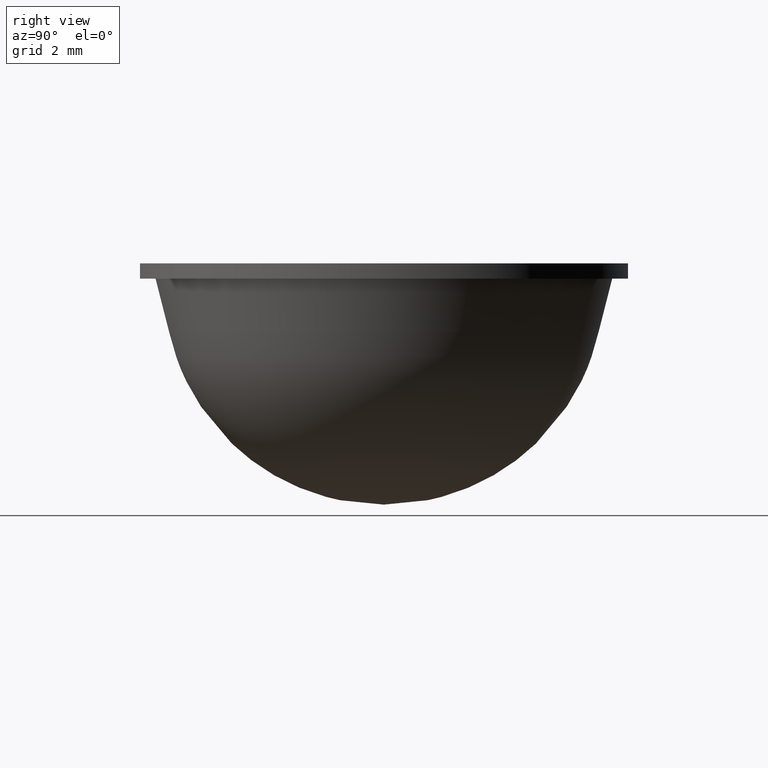
[diagram: clean part render]
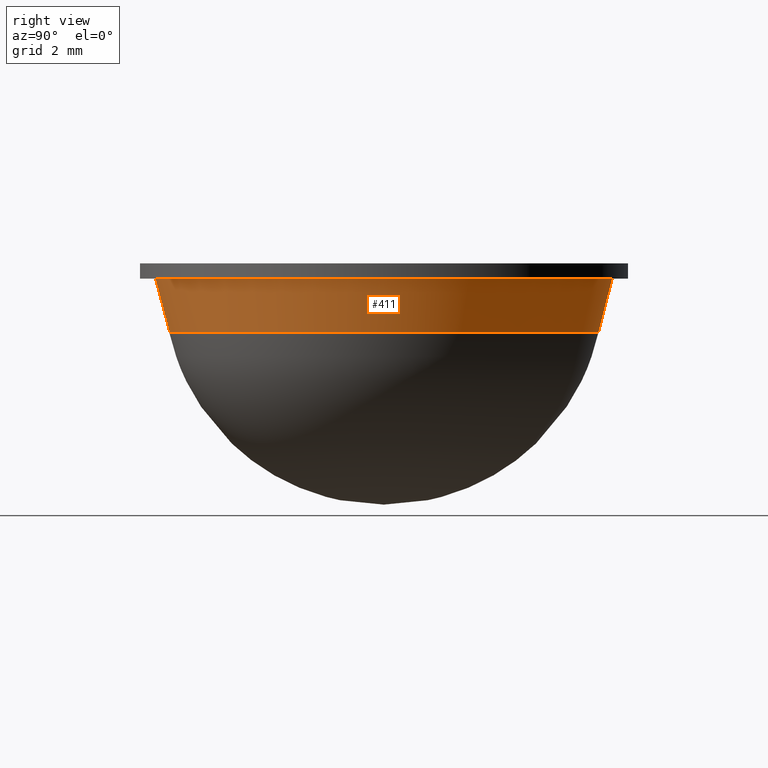
[diagram: same view with one face highlighted and labeled with its STEP entity id]
A machine part, right view. The second image highlights one B-rep face of the part: STEP entity #411.
In plain terms, the highlighted face is a freeform B-spline surface patch.
Its self-contained STEP definition (entity closure, byte-faithful):
#250=CARTESIAN_POINT('',(-0.588443217960847,7.476880002998393,7.400000000000343));
#251=VERTEX_POINT('',#250);
#265=CARTESIAN_POINT('',(-0.551693312700505,7.009928182672359,5.651923334424920));
#266=VERTEX_POINT('',#265);
#267=CARTESIAN_POINT('',(-0.551693312700505,7.009928182672359,5.651923334424920));
#268=CARTESIAN_POINT('',(-0.588443217960847,7.476880002998393,7.400000000000343));
#269=QUASI_UNIFORM_CURVE('',1,(#267,#268),.UNSPECIFIED.,.F.,.U.);
#270=EDGE_CURVE('',#266,#251,#269,.T.);
#287=CARTESIAN_POINT('',(0.551693312700505,-7.009928182672359,5.651923334424920));
#288=VERTEX_POINT('',#287);
#304=CARTESIAN_POINT('',(0.588443217960847,-7.476880002998392,7.400000000000343));
#305=VERTEX_POINT('',#304);
#306=CARTESIAN_POINT('',(0.551693312700505,-7.009928182672359,5.651923334424920));
#307=CARTESIAN_POINT('',(0.588443217960847,-7.476880002998392,7.400000000000343));
#308=QUASI_UNIFORM_CURVE('',1,(#306,#307),.UNSPECIFIED.,.F.,.U.);
#309=EDGE_CURVE('',#288,#305,#308,.T.);
#329=CARTESIAN_POINT('',(0.550774565062718,-6.998254387164413,5.608221417784466));
#330=CARTESIAN_POINT('',(7.549028952227130,-6.447479822101694,5.608221417784466));
#331=CARTESIAN_POINT('',(6.998254387164413,0.550774565062718,5.608221417784466));
#332=CARTESIAN_POINT('',(6.447479822101694,7.549028952227130,5.608221417784466));
#333=CARTESIAN_POINT('',(-0.550774565062718,6.998254387164413,5.608221417784466));
#334=CARTESIAN_POINT('',(0.589384934281245,-7.488845643394309,7.444794464555390));
#335=CARTESIAN_POINT('',(8.078230577675553,-6.899460709113066,7.444794464555390));
#336=CARTESIAN_POINT('',(7.488845643394309,0.589384934281245,7.444794464555390));
#337=CARTESIAN_POINT('',(6.899460709113066,8.078230577675553,7.444794464555390));
#338=CARTESIAN_POINT('',(-0.589384934281245,7.488845643394309,7.444794464555390));
#346=(BOUNDED_SURFACE()B_SPLINE_SURFACE(2,1,((#329,#334),(#330,#335),(#331,#336),(#332,#337),(#333,#338)),.UNSPECIFIED.,.F.,.F.,.U.)B_SPLINE_SURFACE_WITH_KNOTS((3,2,3),(2,2),(0.0,12.446293497161649,24.892586994323299),(0.0,1.0),.UNSPECIFIED.)GEOMETRIC_REPRESENTATION_ITEM()RATIONAL_B_SPLINE_SURFACE(((1.0,1.0),(0.707106781186548,0.707106781186548),(1.0,1.0),(0.707106781186548,0.707106781186548),(1.0,1.0)))REPRESENTATION_ITEM('')SURFACE());
#347=CARTESIAN_POINT('',(7.500000000000000,0.0,7.400000000000000));
#348=VERTEX_POINT('',#347);
#349=CARTESIAN_POINT('',(-0.588443217960847,7.476880002998393,7.400000000000343));
#350=CARTESIAN_POINT('',(-0.294675802559532,7.500000000000000,7.400000000000000));
#351=CARTESIAN_POINT('',(0.0,7.500000000000000,7.400000000000000));
#352=CARTESIAN_POINT('',(7.500000000000000,7.500000000000000,7.400000000000001));
#353=CARTESIAN_POINT('',(7.500000000000000,0.0,7.400000000000000));
#361=(BOUNDED_CURVE()B_SPLINE_CURVE(2,(#349,#350,#351,#352,#353),.UNSPECIFIED.,.F.,.U.)B_SPLINE_CURVE_WITH_KNOTS((3,2,3),(0.236331300632675,0.250000000000000,0.500000000000000),.UNSPECIFIED.)CURVE()GEOMETRIC_REPRESENTATION_ITEM()RATIONAL_B_SPLINE_CURVE((0.969723356171624,0.983986122581243,1.0,0.707106781186547,1.0))REPRESENTATION_ITEM(''));
#362=EDGE_CURVE('',#251,#348,#361,.T.);
#363=ORIENTED_EDGE('',*,*,#362,.T.);
#364=CARTESIAN_POINT('',(7.500000000000000,0.0,7.400000000000000));
#365=CARTESIAN_POINT('',(7.499999999999999,-6.932928687432826,7.400000000000002));
#366=CARTESIAN_POINT('',(0.588443217960847,-7.476880002998393,7.400000000000344));
#374=(BOUNDED_CURVE()B_SPLINE_CURVE(2,(#364,#365,#366),.UNSPECIFIED.,.F.,.U.)B_SPLINE_CURVE_WITH_KNOTS((3,3),(0.500000000000000,0.736331300632675),.UNSPECIFIED.)CURVE()GEOMETRIC_REPRESENTATION_ITEM()RATIONAL_B_SPLINE_CURVE((1.0,0.723120658605304,0.969723356171624))REPRESENTATION_ITEM(''));
#375=EDGE_CURVE('',#348,#305,#374,.T.);
#376=ORIENTED_EDGE('',*,*,#375,.T.);
#377=ORIENTED_EDGE('',*,*,#309,.F.);
#378=CARTESIAN_POINT('',(7.031604271963740,0.0,5.651923334423870));
#379=VERTEX_POINT('',#378);
#380=CARTESIAN_POINT('',(7.031604271963740,0.0,5.651923334423870));
#381=CARTESIAN_POINT('',(7.031604271963740,-6.499948130095079,5.651923334423869));
#382=CARTESIAN_POINT('',(0.551693312700505,-7.009928182672359,5.651923334424920));
#390=(BOUNDED_CURVE()B_SPLINE_CURVE(2,(#380,#381,#382),.UNSPECIFIED.,.F.,.U.)B_SPLINE_CURVE_WITH_KNOTS((3,3),(0.500000000000000,0.736331300632466),.UNSPECIFIED.)CURVE()GEOMETRIC_REPRESENTATION_ITEM()RATIONAL_B_SPLINE_CURVE((1.0,0.723120658605549,0.969723356171188))REPRESENTATION_ITEM(''));
#391=EDGE_CURVE('',#379,#288,#390,.T.);
#392=ORIENTED_EDGE('',*,*,#391,.F.);
#393=CARTESIAN_POINT('',(-0.551693312700505,7.009928182672359,5.651923334424920));
#394=CARTESIAN_POINT('',(-0.276272484287225,7.031604271963740,5.651923334423869));
#395=CARTESIAN_POINT('',(0.0,7.031604271963740,5.651923334423870));
#396=CARTESIAN_POINT('',(7.031604271963740,7.031604271963740,5.651923334423871));
#397=CARTESIAN_POINT('',(7.031604271963740,0.0,5.651923334423870));
#405=(BOUNDED_CURVE()B_SPLINE_CURVE(2,(#393,#394,#395,#396,#397),.UNSPECIFIED.,.F.,.U.)B_SPLINE_CURVE_WITH_KNOTS((3,2,3),(0.236331300632466,0.250000000000000,0.500000000000000),.UNSPECIFIED.)CURVE()GEOMETRIC_REPRESENTATION_ITEM()RATIONAL_B_SPLINE_CURVE((0.969723356171187,0.983986122580998,1.0,0.707106781186548,1.0))REPRESENTATION_ITEM(''));
#406=EDGE_CURVE('',#266,#379,#405,.T.);
#407=ORIENTED_EDGE('',*,*,#406,.F.);
#408=ORIENTED_EDGE('',*,*,#270,.T.);
#409=EDGE_LOOP('',(#363,#376,#377,#392,#407,#408));
#410=FACE_OUTER_BOUND('',#409,.T.);
#411=ADVANCED_FACE('',(#410),#346,.T.);